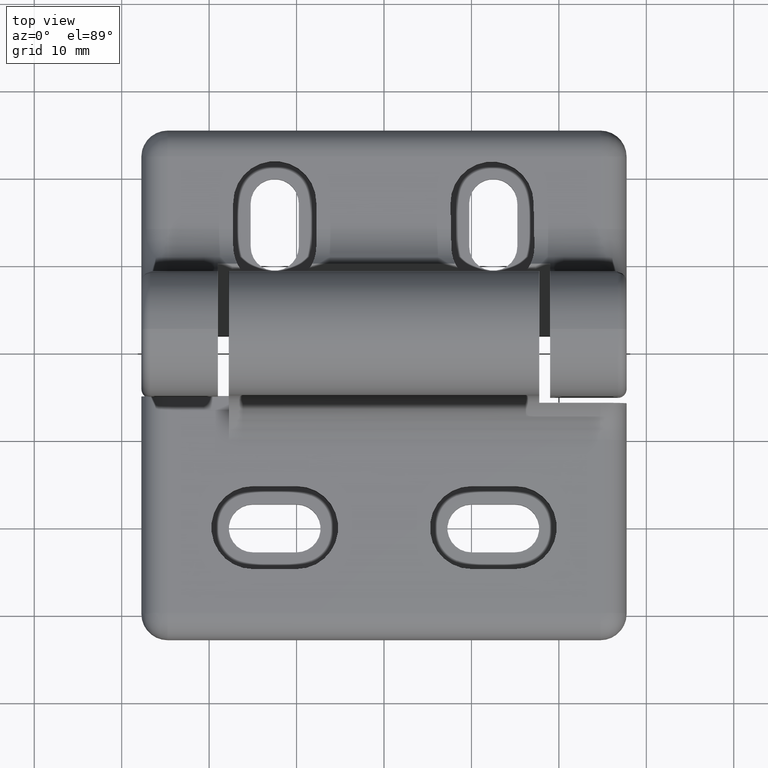
[diagram: clean part render]
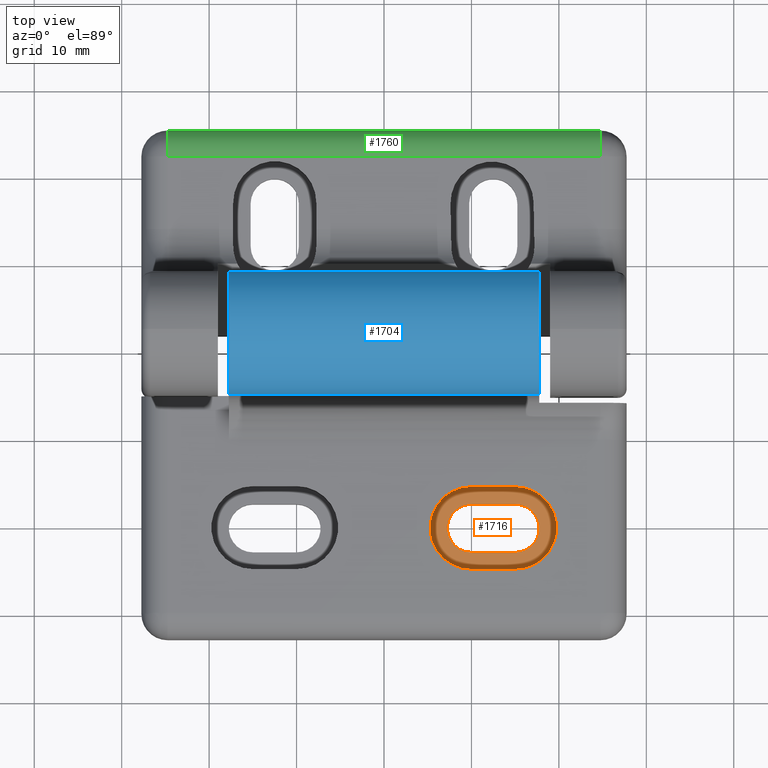
[diagram: same view with three faces highlighted in distinct colors, each labeled with its STEP entity id]
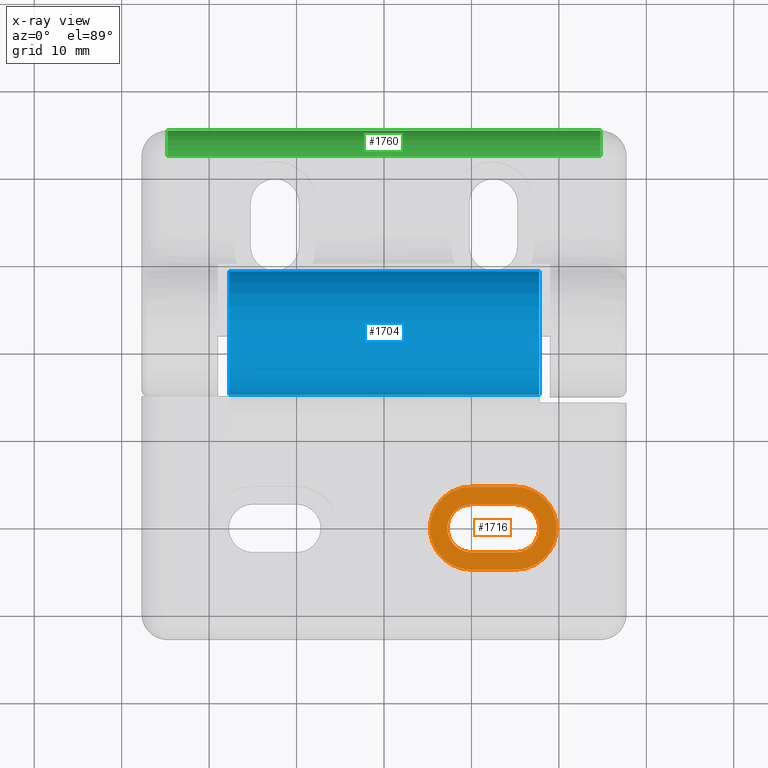
[diagram: x-ray of the same camera — body ghosted, the three highlighted faces saturated]
A machine part, top view with three faces highlighted in distinct colors.
The next image is the same camera in x-ray (body ghosted, the three faces saturated) — at least one of them is partly hidden behind the body in this view.
Their STEP definitions:

[orange] entity #1716 — the highlighted planar face has unit normal (-0, 0, 1).
#40=FACE_BOUND('',#580,.T.);
#68=PLANE('',#1849);
#155=LINE('',#2672,#298);
#158=LINE('',#2681,#301);
#164=LINE('',#2695,#307);
#168=LINE('',#2704,#311);
#298=VECTOR('',#2117,5.00000000000001);
#301=VECTOR('',#2128,5.);
#307=VECTOR('',#2144,5.00000000000001);
#311=VECTOR('',#2154,5.00000000000001);
#474=FACE_OUTER_BOUND('',#579,.T.);
#579=EDGE_LOOP('',(#1311,#1312,#1313,#1314));
#580=EDGE_LOOP('',(#1315,#1316,#1317,#1318));
#687=CIRCLE('',#1832,2.75);
#689=CIRCLE('',#1836,2.75);
#692=CIRCLE('',#1845,4.75);
#693=CIRCLE('',#1848,4.75);
#801=VERTEX_POINT('',#2661);
#802=VERTEX_POINT('',#2663);
#805=VERTEX_POINT('',#2670);
#807=VERTEX_POINT('',#2676);
#809=VERTEX_POINT('',#2692);
#810=VERTEX_POINT('',#2694);
#811=VERTEX_POINT('',#2698);
#812=VERTEX_POINT('',#2702);
#980=EDGE_CURVE('',#801,#802,#687,.T.);
#984=EDGE_CURVE('',#805,#801,#155,.T.);
#987=EDGE_CURVE('',#807,#805,#689,.T.);
#989=EDGE_CURVE('',#802,#807,#158,.T.);
#996=EDGE_CURVE('',#810,#809,#164,.T.);
#999=EDGE_CURVE('',#809,#811,#692,.T.);
#1001=EDGE_CURVE('',#811,#812,#168,.T.);
#1002=EDGE_CURVE('',#812,#810,#693,.T.);
#1311=ORIENTED_EDGE('',*,*,#996,.T.);
#1312=ORIENTED_EDGE('',*,*,#999,.T.);
#1313=ORIENTED_EDGE('',*,*,#1001,.T.);
#1314=ORIENTED_EDGE('',*,*,#1002,.T.);
#1315=ORIENTED_EDGE('',*,*,#984,.F.);
#1316=ORIENTED_EDGE('',*,*,#987,.F.);
#1317=ORIENTED_EDGE('',*,*,#989,.F.);
#1318=ORIENTED_EDGE('',*,*,#980,.F.);
#1716=ADVANCED_FACE('',(#474,#40),#68,.T.);
#1832=AXIS2_PLACEMENT_3D('',#2664,#2109,#2110);
#1836=AXIS2_PLACEMENT_3D('',#2678,#2122,#2123);
#1845=AXIS2_PLACEMENT_3D('',#2700,#2149,#2150);
#1848=AXIS2_PLACEMENT_3D('',#2706,#2157,#2158);
#1849=AXIS2_PLACEMENT_3D('',#2707,#2159,#2160);
#2109=DIRECTION('center_axis',(0.,0.,1.));
#2110=DIRECTION('ref_axis',(0.,1.,0.));
#2117=DIRECTION('',(1.,0.,0.));
#2122=DIRECTION('center_axis',(0.,0.,1.));
#2123=DIRECTION('ref_axis',(0.,1.,0.));
#2128=DIRECTION('',(-1.,0.,0.));
#2144=DIRECTION('',(1.,0.,0.));
#2149=DIRECTION('center_axis',(0.,0.,1.));
#2150=DIRECTION('ref_axis',(-1.,0.,0.));
#2154=DIRECTION('',(-1.,0.,0.));
#2157=DIRECTION('center_axis',(0.,0.,1.));
#2158=DIRECTION('ref_axis',(1.,0.,0.));
#2159=DIRECTION('center_axis',(0.,0.,1.));
#2160=DIRECTION('ref_axis',(1.,0.,0.));
#2661=CARTESIAN_POINT('',(25.,-2.75,3.));
#2663=CARTESIAN_POINT('',(25.,2.75,3.));
#2664=CARTESIAN_POINT('Origin',(25.,0.,3.));
#2670=CARTESIAN_POINT('',(20.,-2.75,3.));
#2672=CARTESIAN_POINT('',(20.,-2.75,3.));
#2676=CARTESIAN_POINT('',(20.,2.75,3.));
#2678=CARTESIAN_POINT('Origin',(20.,0.,3.));
#2681=CARTESIAN_POINT('',(25.,2.75,3.));
#2692=CARTESIAN_POINT('',(25.,-4.75,3.));
#2694=CARTESIAN_POINT('',(20.,-4.75,3.));
#2695=CARTESIAN_POINT('',(20.,-4.75,3.));
#2698=CARTESIAN_POINT('',(25.,4.75,3.));
#2700=CARTESIAN_POINT('Origin',(25.,0.,3.));
#2702=CARTESIAN_POINT('',(20.,4.75,3.));
#2704=CARTESIAN_POINT('',(25.,4.75,3.));
#2706=CARTESIAN_POINT('Origin',(20.,0.,3.));
#2707=CARTESIAN_POINT('Origin',(30.475,-5.225,3.));

[blue] entity #1704 — the highlighted cylindrical surface (partial cylindrical patch) has radius 7.1 mm, axis along (1, -0, 0).
#141=LINE('',#2626,#284);
#151=LINE('',#2658,#294);
#284=VECTOR('',#2071,35.5);
#294=VECTOR('',#2105,35.5);
#410=CYLINDRICAL_SURFACE('',#1830,7.1);
#462=FACE_OUTER_BOUND('',#567,.T.);
#567=EDGE_LOOP('',(#1263,#1264,#1265,#1266));
#682=CIRCLE('',#1821,7.1);
#684=CIRCLE('',#1826,7.1);
#788=VERTEX_POINT('',#2623);
#789=VERTEX_POINT('',#2625);
#793=VERTEX_POINT('',#2635);
#796=VERTEX_POINT('',#2647);
#962=EDGE_CURVE('',#789,#788,#141,.T.);
#968=EDGE_CURVE('',#788,#793,#682,.T.);
#973=EDGE_CURVE('',#796,#789,#684,.T.);
#978=EDGE_CURVE('',#796,#793,#151,.F.);
#1263=ORIENTED_EDGE('',*,*,#973,.T.);
#1264=ORIENTED_EDGE('',*,*,#962,.T.);
#1265=ORIENTED_EDGE('',*,*,#968,.T.);
#1266=ORIENTED_EDGE('',*,*,#978,.F.);
#1704=ADVANCED_FACE('',(#462),#410,.T.);
#1821=AXIS2_PLACEMENT_3D('',#2637,#2080,#2081);
#1826=AXIS2_PLACEMENT_3D('',#2648,#2093,#2094);
#1830=AXIS2_PLACEMENT_3D('',#2657,#2103,#2104);
#2071=DIRECTION('',(1.,0.,0.));
#2080=DIRECTION('center_axis',(-1.,0.,0.));
#2081=DIRECTION('ref_axis',(0.,1.,0.));
#2093=DIRECTION('center_axis',(1.,0.,0.));
#2094=DIRECTION('ref_axis',(0.,-1.964391E-13,-1.));
#2103=DIRECTION('center_axis',(1.,0.,0.));
#2104=DIRECTION('ref_axis',(0.,0.,1.));
#2105=DIRECTION('',(-1.,0.,0.));
#2623=CARTESIAN_POINT('',(27.75,15.05,15.402));
#2625=CARTESIAN_POINT('',(-7.75000000000001,15.05,15.402));
#2626=CARTESIAN_POINT('',(-7.75000000000001,15.05,15.402));
#2635=CARTESIAN_POINT('',(27.75,21.884300816585,8.30697329505148));
#2637=CARTESIAN_POINT('Origin',(27.75,22.15,15.402));
#2647=CARTESIAN_POINT('',(-7.75000000000001,21.884300816585,8.30697329505148));
#2648=CARTESIAN_POINT('Origin',(-7.75000000000001,22.15,15.402));
#2657=CARTESIAN_POINT('Origin',(-7.75000001000001,22.15,15.402));
#2658=CARTESIAN_POINT('',(-7.75000001000001,21.884300816585,8.30697329505148));

[green] entity #1760 — the highlighted cylindrical surface (edge-blend (fillet) strip) has radius 3 mm, axis along (1, -0, 0).
#223=LINE('',#2963,#366);
#248=LINE('',#3039,#391);
#366=VECTOR('',#2351,49.5);
#391=VECTOR('',#2422,49.4999999982885);
#439=CYLINDRICAL_SURFACE('',#1949,3.);
#518=FACE_OUTER_BOUND('',#633,.T.);
#633=EDGE_LOOP('',(#1551,#1552,#1553,#1554));
#746=CIRCLE('',#1948,3.);
#747=CIRCLE('',#1950,3.);
#887=VERTEX_POINT('',#2960);
#888=VERTEX_POINT('',#2962);
#915=VERTEX_POINT('',#3037);
#916=VERTEX_POINT('',#3038);
#1101=EDGE_CURVE('',#887,#888,#223,.T.);
#1141=EDGE_CURVE('',#915,#916,#248,.T.);
#1149=EDGE_CURVE('',#915,#888,#746,.T.);
#1150=EDGE_CURVE('',#916,#887,#747,.T.);
#1551=ORIENTED_EDGE('',*,*,#1149,.T.);
#1552=ORIENTED_EDGE('',*,*,#1101,.F.);
#1553=ORIENTED_EDGE('',*,*,#1150,.F.);
#1554=ORIENTED_EDGE('',*,*,#1141,.F.);
#1760=ADVANCED_FACE('',(#518),#439,.T.);
#1948=AXIS2_PLACEMENT_3D('',#3073,#2439,#2440);
#1949=AXIS2_PLACEMENT_3D('',#3074,#2441,#2442);
#1950=AXIS2_PLACEMENT_3D('',#3075,#2443,#2444);
#2351=DIRECTION('',(-1.,0.,0.));
#2422=DIRECTION('',(1.,0.,0.));
#2439=DIRECTION('center_axis',(1.,0.,0.));
#2440=DIRECTION('ref_axis',(0.,0.,1.));
#2441=DIRECTION('center_axis',(1.,0.,0.));
#2442=DIRECTION('ref_axis',(0.,-0.707106781186547,-0.707106781186548));
#2443=DIRECTION('center_axis',(1.,0.,0.));
#2444=DIRECTION('ref_axis',(0.,0.,-1.));
#2960=CARTESIAN_POINT('',(34.75,42.4677756572818,7.99777293092992));
#2962=CARTESIAN_POINT('',(-14.75,42.4677756572818,7.99777293092992));
#2963=CARTESIAN_POINT('',(34.75,42.4677756572818,7.99777293092992));
#3037=CARTESIAN_POINT('',(-14.7499999991161,45.4677756572818,4.99777293004603));
#3038=CARTESIAN_POINT('',(34.7499999991723,45.4677756572818,4.99777293010225));
#3039=CARTESIAN_POINT('',(-14.75,45.4677756572818,4.99777293092992));
#3073=CARTESIAN_POINT('Origin',(-14.75,42.4677756572818,4.99777293092992));
#3074=CARTESIAN_POINT('Origin',(-14.75000001,42.4677756572818,4.99777293092992));
#3075=CARTESIAN_POINT('Origin',(34.75,42.4677756572818,4.99777293092992));